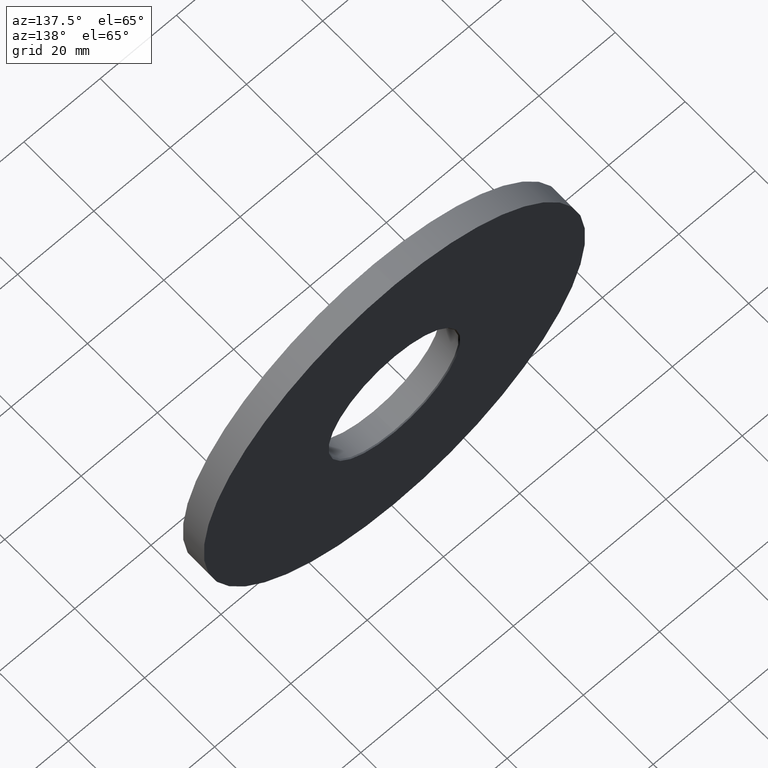
[diagram: clean part render]
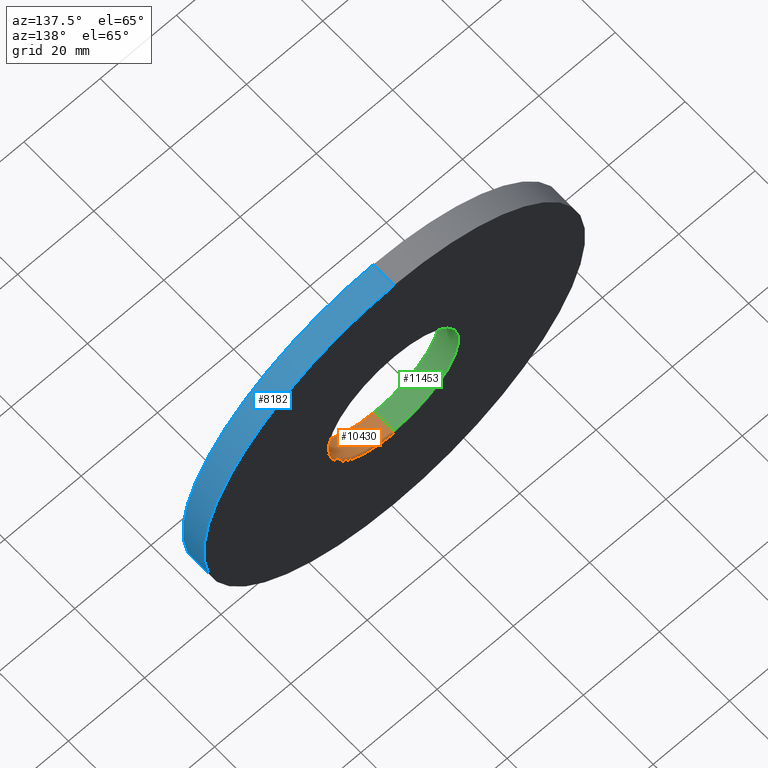
[diagram: same view with three faces highlighted in distinct colors, each labeled with its STEP entity id]
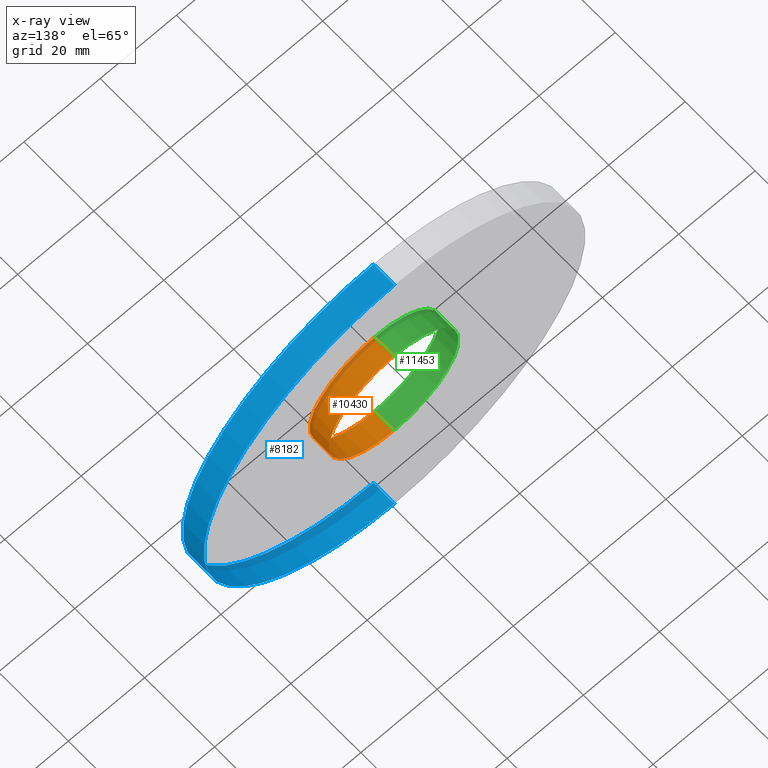
[diagram: x-ray of the same camera — body ghosted, the three highlighted faces saturated]
A machine part, auxiliary view with three faces highlighted in distinct colors.
The next image is the same camera in x-ray (body ghosted, the three faces saturated) — at least one of them is partly hidden behind the body in this view.
Their STEP definitions:

[orange] entity #10430 — the highlighted cylindrical surface (partial cylindrical patch) has radius 17.05 mm, axis along (-0, -1, -0).
#803 = DIRECTION ( 'NONE',  ( 0.000000000000000000, 1.000000000000000000, 0.000000000000000000 ) ) ;
#893 = ORIENTED_EDGE ( 'NONE', *, *, #4896, .T. ) ;
#1184 = DIRECTION ( 'NONE',  ( -0.000000000000000000, -1.000000000000000000, -0.000000000000000000 ) ) ;
#2057 = CARTESIAN_POINT ( 'NONE',  ( 0.000000000000000000, 6.000000000000000000, 0.000000000000000000 ) ) ;
#2596 = EDGE_LOOP ( 'NONE', ( #11263, #893, #3053, #4423 ) ) ;
#2646 = EDGE_CURVE ( 'NONE', #4141, #10538, #13466, .T. ) ;
#3053 = ORIENTED_EDGE ( 'NONE', *, *, #2646, .T. ) ;
#3241 = DIRECTION ( 'NONE',  ( 0.000000000000000000, 0.000000000000000000, 1.000000000000000000 ) ) ;
#3429 = CARTESIAN_POINT ( 'NONE',  ( 0.000000000000000000, 0.2499999999999863443, 0.000000000000000000 ) ) ;
#4141 = VERTEX_POINT ( 'NONE', #12867 ) ;
#4423 = ORIENTED_EDGE ( 'NONE', *, *, #7233, .T. ) ;
#4896 = EDGE_CURVE ( 'NONE', #9987, #4141, #9657, .T. ) ;
#5006 = CARTESIAN_POINT ( 'NONE',  ( 2.088022792546237353E-15, 6.000000000000000000, 17.05000000000000071 ) ) ;
#5780 = CARTESIAN_POINT ( 'NONE',  ( 0.000000000000000000, 5.749999999999985789, 0.000000000000000000 ) ) ;
#6569 = LINE ( 'NONE', #5006, #8177 ) ;
#6714 = VECTOR ( 'NONE', #15104, 1000.000000000000000 ) ;
#7233 = EDGE_CURVE ( 'NONE', #10538, #16369, #13587, .T. ) ;
#7288 = DIRECTION ( 'NONE',  ( -0.000000000000000000, -1.000000000000000000, -0.000000000000000000 ) ) ;
#8165 = CARTESIAN_POINT ( 'NONE',  ( 2.088022792546237353E-15, 0.2499999999999863443, 17.05000000000000071 ) ) ;
#8177 = VECTOR ( 'NONE', #1184, 1000.000000000000000 ) ;
#8251 = AXIS2_PLACEMENT_3D ( 'NONE', #2057, #7288, #9538 ) ;
#9259 = AXIS2_PLACEMENT_3D ( 'NONE', #5780, #803, #10821 ) ;
#9538 = DIRECTION ( 'NONE',  ( 0.000000000000000000, 0.000000000000000000, -1.000000000000000000 ) ) ;
#9555 = CYLINDRICAL_SURFACE ( 'NONE', #8251, 17.05000000000000071 ) ;
#9657 = CIRCLE ( 'NONE', #9259, 17.05000000000000071 ) ;
#9949 = FACE_OUTER_BOUND ( 'NONE', #2596, .T. ) ;
#9987 = VERTEX_POINT ( 'NONE', #11326 ) ;
#10430 = ADVANCED_FACE ( 'NONE', ( #9949 ), #9555, .F. ) ;
#10538 = VERTEX_POINT ( 'NONE', #11132 ) ;
#10541 = AXIS2_PLACEMENT_3D ( 'NONE', #3429, #12298, #3241 ) ;
#10821 = DIRECTION ( 'NONE',  ( 0.000000000000000000, 0.000000000000000000, 1.000000000000000000 ) ) ;
#11132 = CARTESIAN_POINT ( 'NONE',  ( 0.000000000000000000, 0.2499999999999863443, -17.05000000000000071 ) ) ;
#11263 = ORIENTED_EDGE ( 'NONE', *, *, #11355, .F. ) ;
#11326 = CARTESIAN_POINT ( 'NONE',  ( 2.088022792546237353E-15, 5.749999999999985789, 17.05000000000000071 ) ) ;
#11355 = EDGE_CURVE ( 'NONE', #9987, #16369, #6569, .T. ) ;
#12298 = DIRECTION ( 'NONE',  ( -0.000000000000000000, -1.000000000000000000, -0.000000000000000000 ) ) ;
#12571 = CARTESIAN_POINT ( 'NONE',  ( 0.000000000000000000, 6.000000000000000000, -17.05000000000000071 ) ) ;
#12867 = CARTESIAN_POINT ( 'NONE',  ( 0.000000000000000000, 5.749999999999985789, -17.05000000000000071 ) ) ;
#13466 = LINE ( 'NONE', #12571, #6714 ) ;
#13587 = CIRCLE ( 'NONE', #10541, 17.05000000000000071 ) ;
#15104 = DIRECTION ( 'NONE',  ( -0.000000000000000000, -1.000000000000000000, -0.000000000000000000 ) ) ;
#16369 = VERTEX_POINT ( 'NONE', #8165 ) ;

[blue] entity #8182 — the highlighted cylindrical surface (partial cylindrical patch) has radius 50 mm, axis along (-0, -1, -0).
#259 = DIRECTION ( 'NONE',  ( 0.000000000000000000, 0.000000000000000000, 1.000000000000000000 ) ) ;
#389 = VERTEX_POINT ( 'NONE', #13252 ) ;
#453 = CARTESIAN_POINT ( 'NONE',  ( 6.123233995736766085E-15, 0.000000000000000000, 50.00000000000000000 ) ) ;
#979 = DIRECTION ( 'NONE',  ( 0.000000000000000000, 0.000000000000000000, -1.000000000000000000 ) ) ;
#1019 = CARTESIAN_POINT ( 'NONE',  ( 0.000000000000000000, 6.000000000000000000, 0.000000000000000000 ) ) ;
#1858 = CYLINDRICAL_SURFACE ( 'NONE', #2386, 50.00000000000000000 ) ;
#2386 = AXIS2_PLACEMENT_3D ( 'NONE', #14875, #5794, #979 ) ;
#2572 = EDGE_CURVE ( 'NONE', #8193, #8677, #5923, .T. ) ;
#3196 = CIRCLE ( 'NONE', #10981, 50.00000000000000000 ) ;
#3454 = FACE_OUTER_BOUND ( 'NONE', #5129, .T. ) ;
#4324 = ORIENTED_EDGE ( 'NONE', *, *, #2572, .F. ) ;
#4353 = VECTOR ( 'NONE', #8163, 1000.000000000000000 ) ;
#4894 = DIRECTION ( 'NONE',  ( 0.000000000000000000, 1.000000000000000000, 0.000000000000000000 ) ) ;
#5129 = EDGE_LOOP ( 'NONE', ( #9536, #12840, #5465, #4324 ) ) ;
#5465 = ORIENTED_EDGE ( 'NONE', *, *, #11049, .T. ) ;
#5554 = AXIS2_PLACEMENT_3D ( 'NONE', #1019, #4894, #15083 ) ;
#5794 = DIRECTION ( 'NONE',  ( -0.000000000000000000, -1.000000000000000000, -0.000000000000000000 ) ) ;
#5906 = CARTESIAN_POINT ( 'NONE',  ( 0.000000000000000000, 6.000000000000000000, -50.00000000000000000 ) ) ;
#5923 = LINE ( 'NONE', #11284, #7132 ) ;
#6775 = CIRCLE ( 'NONE', #5554, 50.00000000000000000 ) ;
#7132 = VECTOR ( 'NONE', #12519, 1000.000000000000000 ) ;
#7236 = CARTESIAN_POINT ( 'NONE',  ( 6.123233995736766085E-15, 6.000000000000000000, 50.00000000000000000 ) ) ;
#8028 = DIRECTION ( 'NONE',  ( 0.000000000000000000, 1.000000000000000000, 0.000000000000000000 ) ) ;
#8163 = DIRECTION ( 'NONE',  ( -0.000000000000000000, -1.000000000000000000, -0.000000000000000000 ) ) ;
#8182 = ADVANCED_FACE ( 'NONE', ( #3454 ), #1858, .T. ) ;
#8193 = VERTEX_POINT ( 'NONE', #5906 ) ;
#8677 = VERTEX_POINT ( 'NONE', #13202 ) ;
#9536 = ORIENTED_EDGE ( 'NONE', *, *, #11276, .F. ) ;
#10321 = CARTESIAN_POINT ( 'NONE',  ( 0.000000000000000000, 0.000000000000000000, 0.000000000000000000 ) ) ;
#10981 = AXIS2_PLACEMENT_3D ( 'NONE', #10321, #8028, #259 ) ;
#11049 = EDGE_CURVE ( 'NONE', #14427, #8677, #3196, .T. ) ;
#11276 = EDGE_CURVE ( 'NONE', #389, #8193, #6775, .T. ) ;
#11284 = CARTESIAN_POINT ( 'NONE',  ( 0.000000000000000000, 6.000000000000000000, -50.00000000000000000 ) ) ;
#12519 = DIRECTION ( 'NONE',  ( -0.000000000000000000, -1.000000000000000000, -0.000000000000000000 ) ) ;
#12840 = ORIENTED_EDGE ( 'NONE', *, *, #15368, .T. ) ;
#12891 = LINE ( 'NONE', #7236, #4353 ) ;
#13202 = CARTESIAN_POINT ( 'NONE',  ( 0.000000000000000000, 0.000000000000000000, -50.00000000000000000 ) ) ;
#13252 = CARTESIAN_POINT ( 'NONE',  ( 6.123233995736766085E-15, 6.000000000000000000, 50.00000000000000000 ) ) ;
#14427 = VERTEX_POINT ( 'NONE', #453 ) ;
#14875 = CARTESIAN_POINT ( 'NONE',  ( 0.000000000000000000, 6.000000000000000000, 0.000000000000000000 ) ) ;
#15083 = DIRECTION ( 'NONE',  ( 0.000000000000000000, 0.000000000000000000, 1.000000000000000000 ) ) ;
#15368 = EDGE_CURVE ( 'NONE', #389, #14427, #12891, .T. ) ;

[green] entity #11453 — the highlighted cylindrical surface (partial cylindrical patch) has radius 17.05 mm, axis along (-0, -1, -0).
#391 = DIRECTION ( 'NONE',  ( 0.000000000000000000, 0.000000000000000000, -1.000000000000000000 ) ) ;
#414 = DIRECTION ( 'NONE',  ( 0.000000000000000000, 0.000000000000000000, 1.000000000000000000 ) ) ;
#989 = EDGE_LOOP ( 'NONE', ( #16254, #10111, #14364, #11416 ) ) ;
#1184 = DIRECTION ( 'NONE',  ( -0.000000000000000000, -1.000000000000000000, -0.000000000000000000 ) ) ;
#1201 = DIRECTION ( 'NONE',  ( 0.000000000000000000, 0.000000000000000000, 1.000000000000000000 ) ) ;
#2646 = EDGE_CURVE ( 'NONE', #4141, #10538, #13466, .T. ) ;
#4141 = VERTEX_POINT ( 'NONE', #12867 ) ;
#5006 = CARTESIAN_POINT ( 'NONE',  ( 2.088022792546237353E-15, 6.000000000000000000, 17.05000000000000071 ) ) ;
#5177 = CYLINDRICAL_SURFACE ( 'NONE', #7402, 17.05000000000000071 ) ;
#5555 = CARTESIAN_POINT ( 'NONE',  ( 0.000000000000000000, 5.749999999999985789, 0.000000000000000000 ) ) ;
#5968 = EDGE_CURVE ( 'NONE', #4141, #9987, #8853, .T. ) ;
#6205 = AXIS2_PLACEMENT_3D ( 'NONE', #8762, #7486, #1201 ) ;
#6569 = LINE ( 'NONE', #5006, #8177 ) ;
#6714 = VECTOR ( 'NONE', #15104, 1000.000000000000000 ) ;
#7402 = AXIS2_PLACEMENT_3D ( 'NONE', #11854, #11915, #391 ) ;
#7486 = DIRECTION ( 'NONE',  ( -0.000000000000000000, -1.000000000000000000, -0.000000000000000000 ) ) ;
#8137 = DIRECTION ( 'NONE',  ( 0.000000000000000000, 1.000000000000000000, 0.000000000000000000 ) ) ;
#8165 = CARTESIAN_POINT ( 'NONE',  ( 2.088022792546237353E-15, 0.2499999999999863443, 17.05000000000000071 ) ) ;
#8177 = VECTOR ( 'NONE', #1184, 1000.000000000000000 ) ;
#8762 = CARTESIAN_POINT ( 'NONE',  ( 0.000000000000000000, 0.2499999999999863443, 0.000000000000000000 ) ) ;
#8853 = CIRCLE ( 'NONE', #14566, 17.05000000000000071 ) ;
#9987 = VERTEX_POINT ( 'NONE', #11326 ) ;
#10111 = ORIENTED_EDGE ( 'NONE', *, *, #11355, .T. ) ;
#10538 = VERTEX_POINT ( 'NONE', #11132 ) ;
#11123 = FACE_OUTER_BOUND ( 'NONE', #989, .T. ) ;
#11132 = CARTESIAN_POINT ( 'NONE',  ( 0.000000000000000000, 0.2499999999999863443, -17.05000000000000071 ) ) ;
#11323 = CIRCLE ( 'NONE', #6205, 17.05000000000000071 ) ;
#11326 = CARTESIAN_POINT ( 'NONE',  ( 2.088022792546237353E-15, 5.749999999999985789, 17.05000000000000071 ) ) ;
#11355 = EDGE_CURVE ( 'NONE', #9987, #16369, #6569, .T. ) ;
#11416 = ORIENTED_EDGE ( 'NONE', *, *, #2646, .F. ) ;
#11453 = ADVANCED_FACE ( 'NONE', ( #11123 ), #5177, .F. ) ;
#11854 = CARTESIAN_POINT ( 'NONE',  ( 0.000000000000000000, 6.000000000000000000, 0.000000000000000000 ) ) ;
#11876 = EDGE_CURVE ( 'NONE', #16369, #10538, #11323, .T. ) ;
#11915 = DIRECTION ( 'NONE',  ( -0.000000000000000000, -1.000000000000000000, -0.000000000000000000 ) ) ;
#12571 = CARTESIAN_POINT ( 'NONE',  ( 0.000000000000000000, 6.000000000000000000, -17.05000000000000071 ) ) ;
#12867 = CARTESIAN_POINT ( 'NONE',  ( 0.000000000000000000, 5.749999999999985789, -17.05000000000000071 ) ) ;
#13466 = LINE ( 'NONE', #12571, #6714 ) ;
#14364 = ORIENTED_EDGE ( 'NONE', *, *, #11876, .T. ) ;
#14566 = AXIS2_PLACEMENT_3D ( 'NONE', #5555, #8137, #414 ) ;
#15104 = DIRECTION ( 'NONE',  ( -0.000000000000000000, -1.000000000000000000, -0.000000000000000000 ) ) ;
#16254 = ORIENTED_EDGE ( 'NONE', *, *, #5968, .T. ) ;
#16369 = VERTEX_POINT ( 'NONE', #8165 ) ;